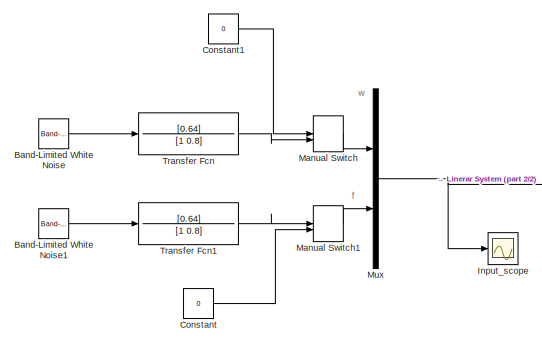
[diagram: root canvas - part 1/2, top left region]
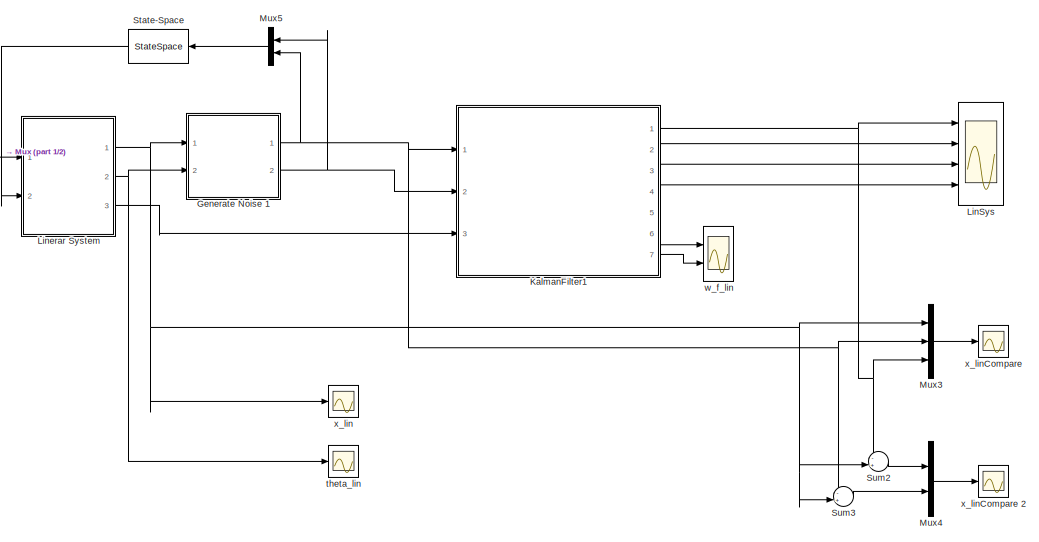
[diagram: root canvas - part 2/2, right side, full height]
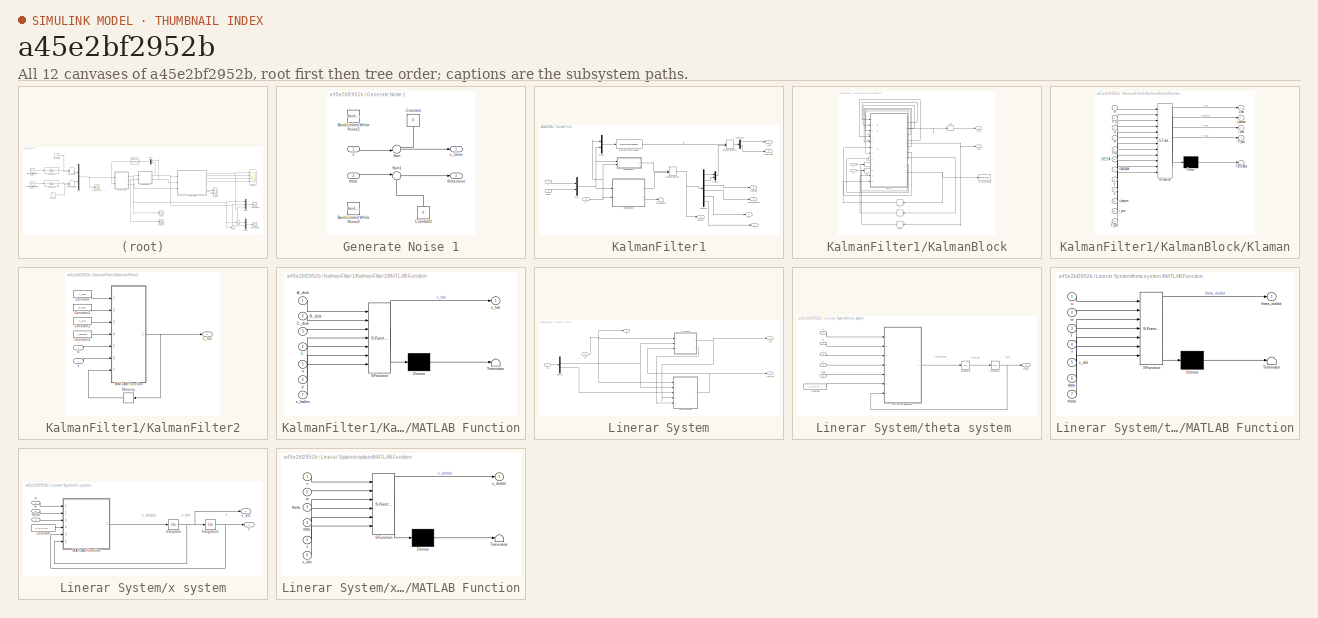
[diagram: thumbnail index - all 12 canvases of the model, root first then tree order]
MODEL slx_a45e2bf2952b
KIND model
CONFIG AbsTol = auto
CONFIG FixedStep = h
CONFIG MaxStep = auto
CONFIG MinStep = auto
CONFIG RelTol = 1e-3
CONFIG SampleTimeConstraint = Unconstrained
CONFIG Solver = ode3
CONFIG SolverMode = Auto
CONFIG SolverName = ode3
CONFIG StartTime = 0.0
CONFIG StopTime = T_max
BLOCK [Reference] Band-Limited White Noise  REF=simulink/Sources/Band-Limited
White Noise
  Cov = Q_kalman(1,1)
  Ports = [0, 1]
  SourceBlock = simulink/Sources/Band-Limited\nWhite Noise
  SourceType = Band-Limited White Noise.
  Ts = h
  VectorParams1D = on
  seed = [23343]
BLOCK [Reference] Band-Limited White Noise1  REF=simulink/Sources/Band-Limited
White Noise
  Cov = Q_kalman(2,2)
  Ports = [0, 1]
  SourceBlock = simulink/Sources/Band-Limited\nWhite Noise
  SourceType = Band-Limited White Noise.
  Ts = h
  VectorParams1D = on
  seed = [23344]
BLOCK [Constant] Constant
  Value = 0
BLOCK [Constant] Constant1
  Value = 0
BLOCK [SubSystem] Generate Noise 1
  Ports = [2, 2]
  RequestExecContextInheritance = off
BLOCK [Reference] Generate Noise 1/Band-Limited White Noise2  REF=simulink/Sources/Band-Limited
White Noise
  Cov = R_kalman(1,1)
  Ports = [0, 1]
  SourceBlock = simulink/Sources/Band-Limited\nWhite Noise
  SourceType = Band-Limited White Noise.
  Ts = h
  VectorParams1D = on
  seed = [23342]
BLOCK [Reference] Generate Noise 1/Band-Limited White Noise3  REF=simulink/Sources/Band-Limited
White Noise
  Cov = R_kalman(2,2)
  Ports = [0, 1]
  SourceBlock = simulink/Sources/Band-Limited\nWhite Noise
  SourceType = Band-Limited White Noise.
  Ts = h
  VectorParams1D = on
  seed = [23341]
BLOCK [Constant] Generate Noise 1/Constant
  Value = 0
BLOCK [Constant] Generate Noise 1/Constant1
  Value = 0
BLOCK [Sum] Generate Noise 1/Sum
  IconShape = round
  InputSameDT = off
  Inputs = ++|
  OutDataTypeStr = Inherit: Inherit via internal rule
  Ports = [2, 1]
  SaturateOnIntegerOverflow = off
BLOCK [Sum] Generate Noise 1/Sum1
  IconShape = round
  InputSameDT = off
  Inputs = |++
  OutDataTypeStr = Inherit: Inherit via internal rule
  Ports = [2, 1]
  SaturateOnIntegerOverflow = off
BLOCK [Inport] Generate Noise 1/theta
  IconDisplay = Port number
  Port = 2
BLOCK [Outport] Generate Noise 1/theta-noise
  IconDisplay = Port number
  Port = 2
BLOCK [Inport] Generate Noise 1/x
  IconDisplay = Port number
BLOCK [Outport] Generate Noise 1/x_noise
  IconDisplay = Port number
BLOCK [Scope] Input_scope
  Floating = off
  LimitDataPoints = off
  NumInputPorts = 1
  Ports = [1]
  SaveName = ScopeData4
  ShowLegends = off
  YMax = 3
  YMin = -4
BLOCK [SubSystem] KalmanFilter1
  Ports = [3, 7]
  RequestExecContextInheritance = off
BLOCK [Demux] KalmanFilter1/Demux
  DisplayOption = bar
  Outputs = 6
  Ports = [1, 6]
BLOCK [Demux] KalmanFilter1/Demux1
  DisplayOption = bar
  Outputs = 2
  Ports = [1, 2]
BLOCK [DiscreteStateSpace] KalmanFilter1/Discrete State-Space
  A = A_ss
  B = B_ss
  C = C_ss
  D = D_ss
BLOCK [SubSystem] KalmanFilter1/KalmanBlock
  Ports = [2, 2]
  RequestExecContextInheritance = off
BLOCK [Constant] KalmanFilter1/KalmanBlock/A2
  Value = H
BLOCK [Constant] KalmanFilter1/KalmanBlock/A4
  Value = phi
BLOCK [Constant] KalmanFilter1/KalmanBlock/A5
  Value = delta
BLOCK [Constant] KalmanFilter1/KalmanBlock/A6
  Value = gamma
BLOCK [Constant] KalmanFilter1/KalmanBlock/A7
  Value = P_0
BLOCK [Constant] KalmanFilter1/KalmanBlock/A8
  Value = Q_kalman
BLOCK [Constant] KalmanFilter1/KalmanBlock/A9
  Value = R_kalman
BLOCK [InitialCondition] KalmanFilter1/KalmanBlock/IC3
  Value = y_0
BLOCK [InitialCondition] KalmanFilter1/KalmanBlock/IC4
  Value = 0
BLOCK [InitialCondition] KalmanFilter1/KalmanBlock/IC5
  Value = X_0
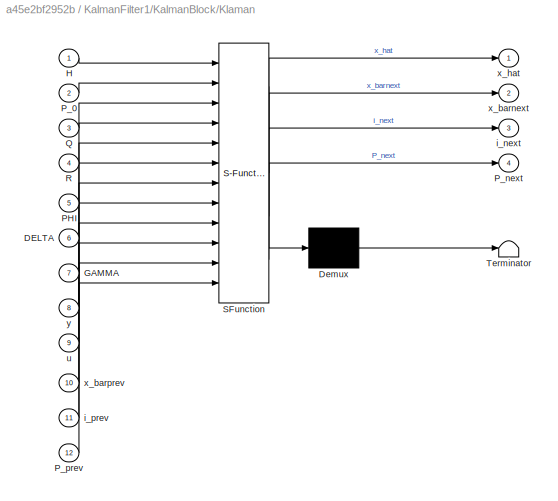
BLOCK [SubSystem] KalmanFilter1/KalmanBlock/Klaman
  ErrorFcn = Stateflow.Translate.translate
  PermitHierarchicalResolution = ExplicitOnly
  Ports = [12, 4]
  RequestExecContextInheritance = off
  SFBlockType = MATLAB Function
  TreatAsAtomicUnit = on
BLOCK [Demux] KalmanFilter1/KalmanBlock/Klaman/ Demux 
  Outputs = 1
  Ports = [1, 1]
BLOCK [S-Function] KalmanFilter1/KalmanBlock/Klaman/ SFunction 
  EnableBusSupport = on
  FunctionName = sf_sfun
  PortCounts = [12 5]
  Ports = [12, 5]
  Tag = Stateflow S-Function Model_kalmanTest3 5
BLOCK [Terminator] KalmanFilter1/KalmanBlock/Klaman/ Terminator 
BLOCK [Inport] KalmanFilter1/KalmanBlock/Klaman/DELTA
  IconDisplay = Port number
  Port = 6
BLOCK [Inport] KalmanFilter1/KalmanBlock/Klaman/GAMMA
  IconDisplay = Port number
  Port = 7
BLOCK [Inport] KalmanFilter1/KalmanBlock/Klaman/H
  IconDisplay = Port number
BLOCK [Inport] KalmanFilter1/KalmanBlock/Klaman/PHI
  IconDisplay = Port number
  Port = 5
BLOCK [Inport] KalmanFilter1/KalmanBlock/Klaman/P_0
  IconDisplay = Port number
  Port = 2
BLOCK [Outport] KalmanFilter1/KalmanBlock/Klaman/P_next
  IconDisplay = Port number
  Port = 4
BLOCK [Inport] KalmanFilter1/KalmanBlock/Klaman/P_prev
  IconDisplay = Port number
  Port = 12
BLOCK [Inport] KalmanFilter1/KalmanBlock/Klaman/Q
  IconDisplay = Port number
  Port = 3
BLOCK [Inport] KalmanFilter1/KalmanBlock/Klaman/R
  IconDisplay = Port number
  Port = 4
BLOCK [Outport] KalmanFilter1/KalmanBlock/Klaman/i_next
  IconDisplay = Port number
  Port = 3
BLOCK [Inport] KalmanFilter1/KalmanBlock/Klaman/i_prev
  IconDisplay = Port number
  Port = 11
BLOCK [Inport] KalmanFilter1/KalmanBlock/Klaman/u
  IconDisplay = Port number
  Port = 9
BLOCK [Outport] KalmanFilter1/KalmanBlock/Klaman/x_barnext
  IconDisplay = Port number
  Port = 2
BLOCK [Inport] KalmanFilter1/KalmanBlock/Klaman/x_barprev
  IconDisplay = Port number
  Port = 10
BLOCK [Outport] KalmanFilter1/KalmanBlock/Klaman/x_hat
  IconDisplay = Port number
BLOCK [Inport] KalmanFilter1/KalmanBlock/Klaman/y
  IconDisplay = Port number
  Port = 8
BLOCK [Memory] KalmanFilter1/KalmanBlock/P
  X0 = P_0
BLOCK [ToWorkspace] KalmanFilter1/KalmanBlock/To Workspace
  FixptAsFi = on
  MaxDataPoints = inf
  Ports = [1]
  SampleTime = -1
  Save2DSignal = 3-D array (concatenate along third dimension)
  VariableName = P_simulation
BLOCK [Memory] KalmanFilter1/KalmanBlock/i 
BLOCK [Inport] KalmanFilter1/KalmanBlock/u 
  IconDisplay = Port number
  Port = 2
BLOCK [Outport] KalmanFilter1/KalmanBlock/x_bar
  IconDisplay = Port number
  Port = 2
BLOCK [Memory] KalmanFilter1/KalmanBlock/x_bar'
  X0 = X_0
BLOCK [Outport] KalmanFilter1/KalmanBlock/x_hat
  IconDisplay = Port number
BLOCK [Inport] KalmanFilter1/KalmanBlock/y 
  IconDisplay = Port number
BLOCK [SubSystem] KalmanFilter1/KalmanFilter2
  Ports = [2, 1]
  RequestExecContextInheritance = off
BLOCK [Constant] KalmanFilter1/KalmanFilter2/Constant
  Value = A_disk
BLOCK [Constant] KalmanFilter1/KalmanFilter2/Constant1
  Value = B_disk
BLOCK [Constant] KalmanFilter1/KalmanFilter2/Constant2
  Value = C_disk
BLOCK [Constant] KalmanFilter1/KalmanFilter2/Constant3
  Value = L_kalman
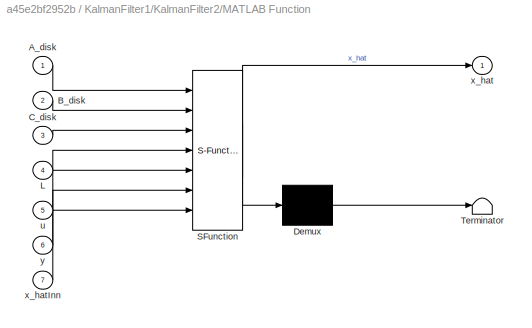
BLOCK [SubSystem] KalmanFilter1/KalmanFilter2/MATLAB Function
  ErrorFcn = Stateflow.Translate.translate
  PermitHierarchicalResolution = ExplicitOnly
  Ports = [7, 1]
  RequestExecContextInheritance = off
  SFBlockType = MATLAB Function
  TreatAsAtomicUnit = on
BLOCK [Demux] KalmanFilter1/KalmanFilter2/MATLAB Function/ Demux 
  Outputs = 1
  Ports = [1, 1]
BLOCK [S-Function] KalmanFilter1/KalmanFilter2/MATLAB Function/ SFunction 
  EnableBusSupport = on
  FunctionName = sf_sfun
  PortCounts = [7 2]
  Ports = [7, 2]
  Tag = Stateflow S-Function Model_kalmanTest3 7
BLOCK [Terminator] KalmanFilter1/KalmanFilter2/MATLAB Function/ Terminator 
BLOCK [Inport] KalmanFilter1/KalmanFilter2/MATLAB Function/A_disk
  IconDisplay = Port number
BLOCK [Inport] KalmanFilter1/KalmanFilter2/MATLAB Function/B_disk
  IconDisplay = Port number
  Port = 2
BLOCK [Inport] KalmanFilter1/KalmanFilter2/MATLAB Function/C_disk
  IconDisplay = Port number
  Port = 3
BLOCK [Inport] KalmanFilter1/KalmanFilter2/MATLAB Function/L
  IconDisplay = Port number
  Port = 4
BLOCK [Inport] KalmanFilter1/KalmanFilter2/MATLAB Function/u
  IconDisplay = Port number
  Port = 5
BLOCK [Outport] KalmanFilter1/KalmanFilter2/MATLAB Function/x_hat
  IconDisplay = Port number
BLOCK [Inport] KalmanFilter1/KalmanFilter2/MATLAB Function/x_hatInn
  IconDisplay = Port number
  Port = 7
BLOCK [Inport] KalmanFilter1/KalmanFilter2/MATLAB Function/y
  IconDisplay = Port number
  Port = 6
BLOCK [Memory] KalmanFilter1/KalmanFilter2/Memory
  X0 = X_0
BLOCK [Inport] KalmanFilter1/KalmanFilter2/u
  IconDisplay = Port number
  Port = 2
BLOCK [Outport] KalmanFilter1/KalmanFilter2/x_hat
  IconDisplay = Port number
BLOCK [Inport] KalmanFilter1/KalmanFilter2/y
  IconDisplay = Port number
BLOCK [ManualSwitch] KalmanFilter1/Manual Switch
BLOCK [ManualSwitch] KalmanFilter1/Manual Switch1
  CurrentSetting = 0
BLOCK [Mux] KalmanFilter1/Mux
  DisplayOption = bar
  Inputs = 2
  Ports = [2, 1]
BLOCK [Mux] KalmanFilter1/Mux1
  DisplayOption = bar
  Inputs = 2
  Ports = [2, 1]
BLOCK [Mux] KalmanFilter1/Mux2
  DisplayOption = bar
  Inputs = 2
  Ports = [2, 1]
BLOCK [Terminator] KalmanFilter1/Terminator
BLOCK [Outport] KalmanFilter1/f
  IconDisplay = Port number
  Port = 7
BLOCK [Inport] KalmanFilter1/theta
  IconDisplay = Port number
  Port = 2
BLOCK [Outport] KalmanFilter1/theta_dothat
  IconDisplay = Port number
  Port = 4
BLOCK [Outport] KalmanFilter1/theta_hat
  IconDisplay = Port number
  Port = 2
BLOCK [Inport] KalmanFilter1/u 
  IconDisplay = Port number
  Port = 3
BLOCK [Outport] KalmanFilter1/vector
  IconDisplay = Port number
  Port = 5
BLOCK [Outport] KalmanFilter1/w
  IconDisplay = Port number
  Port = 6
BLOCK [Inport] KalmanFilter1/x
  IconDisplay = Port number
BLOCK [Outport] KalmanFilter1/x_dothat
  IconDisplay = Port number
  Port = 3
BLOCK [Outport] KalmanFilter1/x_hat
  IconDisplay = Port number
BLOCK [Scope] LinSys
  Floating = off
  LimitDataPoints = off
  NumInputPorts = 4
  Ports = [4]
  SaveName = ScopeData9
  ShowLegends = off
  YMax = 0.4~0.2~3~1
  YMin = -0.2~-0.2~-2~-2
BLOCK [SubSystem] Linerar System
  Ports = [2, 3]
  RequestExecContextInheritance = off
BLOCK [Demux] Linerar System/Demux
  DisplayOption = bar
  Outputs = 2
  Ports = [1, 2]
BLOCK [Inport] Linerar System/In1
  IconDisplay = Port number
BLOCK [Inport] Linerar System/In2
  IconDisplay = Port number
  Port = 2
BLOCK [SubSystem] Linerar System/theta system 
  Ports = [5, 1]
  RequestExecContextInheritance = off
BLOCK [Constant] Linerar System/theta system /Constant
  SampleTime = 0.01
  Value = [L M m b k g]
  VectorParams1D = off
BLOCK [Integrator] Linerar System/theta system /Integrator
  InitialCondition = theta_dot0
  Ports = [1, 1]
BLOCK [Integrator] Linerar System/theta system /Integrator1
  InitialCondition = theta_0
  Ports = [1, 1]
BLOCK [SubSystem] Linerar System/theta system /MATLAB Function
  ErrorFcn = Stateflow.Translate.translate
  PermitHierarchicalResolution = ExplicitOnly
  Ports = [7, 1]
  RequestExecContextInheritance = off
  SFBlockType = MATLAB Function
  TreatAsAtomicUnit = on
BLOCK [Demux] Linerar System/theta system /MATLAB Function/ Demux 
  Outputs = 1
  Ports = [1, 1]
BLOCK [S-Function] Linerar System/theta system /MATLAB Function/ SFunction 
  EnableBusSupport = on
  FunctionName = sf_sfun
  PortCounts = [7 2]
  Ports = [7, 2]
  Tag = Stateflow S-Function Model_kalmanTest3 3
BLOCK [Terminator] Linerar System/theta system /MATLAB Function/ Terminator 
BLOCK [Inport] Linerar System/theta system /MATLAB Function/data
  IconDisplay = Port number
  Port = 6
BLOCK [Inport] Linerar System/theta system /MATLAB Function/f
  IconDisplay = Port number
  Port = 3
BLOCK [Inport] Linerar System/theta system /MATLAB Function/theta
  IconDisplay = Port number
  Port = 7
BLOCK [Outport] Linerar System/theta system /MATLAB Function/theta_dotdot
  IconDisplay = Port number
BLOCK [Inport] Linerar System/theta system /MATLAB Function/u
  IconDisplay = Port number
BLOCK [Inport] Linerar System/theta system /MATLAB Function/w
  IconDisplay = Port number
  Port = 2
BLOCK [Inport] Linerar System/theta system /MATLAB Function/x
  IconDisplay = Port number
  Port = 4
BLOCK [Inport] Linerar System/theta system /MATLAB Function/x_dot
  IconDisplay = Port number
  Port = 5
BLOCK [Inport] Linerar System/theta system /f
  IconDisplay = Port number
  Port = 3
BLOCK [Outport] Linerar System/theta system /theta
  IconDisplay = Port number
BLOCK [Inport] Linerar System/theta system /u 
  IconDisplay = Port number
BLOCK [Inport] Linerar System/theta system /w
  IconDisplay = Port number
  Port = 2
BLOCK [Inport] Linerar System/theta system /x
  IconDisplay = Port number
  Port = 4
BLOCK [Inport] Linerar System/theta system /x_dot
  IconDisplay = Port number
  Port = 5
BLOCK [Outport] Linerar System/theta_lin
  IconDisplay = Port number
  Port = 2
BLOCK [Outport] Linerar System/u
  IconDisplay = Port number
  Port = 3
BLOCK [SubSystem] Linerar System/x system
  Ports = [3, 2]
  RequestExecContextInheritance = off
BLOCK [Constant] Linerar System/x system/Constant
  SampleTime = 0.01
  Value = [L M m b k g]
  VectorParams1D = off
BLOCK [Integrator] Linerar System/x system/Integrator
  InitialCondition = x_dot0
  Ports = [1, 1]
BLOCK [Integrator] Linerar System/x system/Integrator1
  InitialCondition = x_0
  Ports = [1, 1]
BLOCK [SubSystem] Linerar System/x system/MATLAB Function
  ErrorFcn = Stateflow.Translate.translate
  PermitHierarchicalResolution = ExplicitOnly
  Ports = [6, 1]
  RequestExecContextInheritance = off
  SFBlockType = MATLAB Function
  TreatAsAtomicUnit = on
BLOCK [Demux] Linerar System/x system/MATLAB Function/ Demux 
  Outputs = 1
  Ports = [1, 1]
BLOCK [S-Function] Linerar System/x system/MATLAB Function/ SFunction 
  EnableBusSupport = on
  FunctionName = sf_sfun
  PortCounts = [6 2]
  Ports = [6, 2]
  Tag = Stateflow S-Function Model_kalmanTest3 1
BLOCK [Terminator] Linerar System/x system/MATLAB Function/ Terminator 
BLOCK [Inport] Linerar System/x system/MATLAB Function/data
  IconDisplay = Port number
  Port = 4
BLOCK [Inport] Linerar System/x system/MATLAB Function/theta
  IconDisplay = Port number
  Port = 3
BLOCK [Inport] Linerar System/x system/MATLAB Function/u
  IconDisplay = Port number
BLOCK [Inport] Linerar System/x system/MATLAB Function/w
  IconDisplay = Port number
  Port = 2
BLOCK [Inport] Linerar System/x system/MATLAB Function/x
  IconDisplay = Port number
  Port = 5
BLOCK [Inport] Linerar System/x system/MATLAB Function/x_dot
  IconDisplay = Port number
  Port = 6
BLOCK [Outport] Linerar System/x system/MATLAB Function/x_dotdot
  IconDisplay = Port number
BLOCK [Inport] Linerar System/x system/theta
  IconDisplay = Port number
  Port = 3
BLOCK [Inport] Linerar System/x system/u 
  IconDisplay = Port number
BLOCK [Inport] Linerar System/x system/w
  IconDisplay = Port number
  Port = 2
BLOCK [Outport] Linerar System/x system/x
  IconDisplay = Port number
BLOCK [Outport] Linerar System/x system/x_dot
  IconDisplay = Port number
  Port = 2
BLOCK [Outport] Linerar System/x_lin
  IconDisplay = Port number
BLOCK [ManualSwitch] Manual Switch
  CurrentSetting = 0
BLOCK [ManualSwitch] Manual Switch1
  CurrentSetting = 0
BLOCK [Mux] Mux
  DisplayOption = bar
  Inputs = 2
  Ports = [2, 1]
BLOCK [Mux] Mux3
  DisplayOption = bar
  Inputs = 3
  Ports = [3, 1]
BLOCK [Mux] Mux4
  DisplayOption = bar
  Inputs = 2
  Ports = [2, 1]
BLOCK [Mux] Mux5
  DisplayOption = bar
  Inputs = 2
  Ports = [2, 1]
BLOCK [StateSpace] State-Space
  A = A_kA2
  B = B_kA2
  C = C_kA2
  D = D_kA2
  Ports = [1, 1]
  X0 = 0
BLOCK [Sum] Sum2
  IconShape = round
  InputSameDT = off
  Inputs = -+|
  OutDataTypeStr = Inherit: Inherit via internal rule
  Ports = [2, 1]
  SaturateOnIntegerOverflow = off
BLOCK [Sum] Sum3
  IconShape = round
  InputSameDT = off
  Inputs = -+|
  OutDataTypeStr = Inherit: Inherit via internal rule
  Ports = [2, 1]
  SaturateOnIntegerOverflow = off
BLOCK [TransferFcn] Transfer Fcn
  Denominator = [1 0.8]
  Numerator = [0.64]
BLOCK [TransferFcn] Transfer Fcn1
  Denominator = [1 0.8]
  Numerator = [0.64]
BLOCK [Scope] theta_lin
  DataFormat = StructureWithTime
  Floating = off
  LimitDataPoints = off
  NumInputPorts = 1
  Ports = [1]
  SaveName = ScopeData2
  ShowLegends = off
  YMax = 25353039785693015000000000000000000000000000000000000000000000000000000000000000000000000000000000000000000000000000000000000000000000000000000000000000000000000000000000000000000000000000000000000000000000000000000000000000000000000000000000000000000000000000000000000000000000000000000000000000000000000.00000
  YMin = -228177358071237180000000000000000000000000000000000000000000000000000000000000000000000000000000000000000000000000000000000000000000000000000000000000000000000000000000000000000000000000000000000000000000000000000000000000000000000000000000000000000000000000000000000000000000000000000000000000000000000000.00000
BLOCK [Scope] w_f_lin
  DataFormat = StructureWithTime
  Floating = off
  LegendLocations = 0.87455     0.90781    0.097388    0.028273\n0.87455     0.44321    0.097388    0.028273
  LimitDataPoints = off
  NumInputPorts = 2
  Ports = [2]
  SaveName = ScopeData10
  ShowLegends = on
  YMax = 0.3~0.04
  YMin = -0.1~-0.04
BLOCK [Scope] x_lin
  DataFormat = StructureWithTime
  Floating = off
  LimitDataPoints = off
  NumInputPorts = 1
  Ports = [1]
  SaveName = ScopeData1
  ShowLegends = off
  YMax = 0.5
  YMin = -0.5
  ZoomMode = yonly
BLOCK [Scope] x_linCompare
  DataFormat = StructureWithTime
  Floating = off
  LegendLocations = 1.7273     0.87667     0.22231     0.07201
  LimitDataPoints = off
  NumInputPorts = 1
  Ports = [1]
  SaveName = ScopeData6
  ShowLegends = on
  TimeRange = 300
  YMax = 0.4
  YMin = -0.2
  ZoomMode = yonly
BLOCK [Scope] x_linCompare 2
  DataFormat = StructureWithTime
  Floating = off
  LegendLocations = 0.90991     0.88642    0.062032    0.049664
  LimitDataPoints = off
  NumInputPorts = 1
  Ports = [1]
  SaveName = ScopeData7
  ShowLegends = on
  YMax = 0.4
  YMin = -0.2
  ZoomMode = yonly
ANNOTATION (root): f
ANNOTATION (root): w
ANNOTATION Linerar System/theta system : theta
ANNOTATION Linerar System/theta system : theta_dot
ANNOTATION Linerar System/theta system : theta_dotdot
ANNOTATION Linerar System/x system: x
ANNOTATION Linerar System/x system: x_dot
ANNOTATION Linerar System/x system: x_dotdot
LINE Band-Limited White Noise1:1 -> Transfer Fcn1:1
LINE Band-Limited White Noise:1 -> Transfer Fcn:1
LINE Constant1:1 -> Manual Switch:1
LINE Constant:1 -> Manual Switch1:2
LINE Generate Noise 1/Constant1:1 -> Generate Noise 1/Sum1:2
LINE Generate Noise 1/Constant:1 -> Generate Noise 1/Sum:1
LINE Generate Noise 1/Sum1:1 -> Generate Noise 1/theta-noise:1
LINE Generate Noise 1/Sum:1 -> Generate Noise 1/x_noise:1
LINE Generate Noise 1/theta:1 -> Generate Noise 1/Sum1:1
LINE Generate Noise 1/x:1 -> Generate Noise 1/Sum:2
NET Generate Noise 1:1 -> KalmanFilter1:1, Mux3:2, Mux5:2, Sum3:1
NET Generate Noise 1:2 -> KalmanFilter1:2, Mux5:1
LINE KalmanFilter1/Demux1:1 -> KalmanFilter1/x_hat:1
LINE KalmanFilter1/Demux1:2 -> KalmanFilter1/theta_hat:1
LINE KalmanFilter1/Demux:1 -> KalmanFilter1/Mux2:1
LINE KalmanFilter1/Demux:2 -> KalmanFilter1/Mux2:2
LINE KalmanFilter1/Demux:3 -> KalmanFilter1/x_dothat:1
LINE KalmanFilter1/Demux:4 -> KalmanFilter1/theta_dothat:1
LINE KalmanFilter1/Demux:5 -> KalmanFilter1/w:1
LINE KalmanFilter1/Demux:6 -> KalmanFilter1/f:1
LINE KalmanFilter1/Discrete State-Space:1 -> KalmanFilter1/Manual Switch1:1
LINE KalmanFilter1/KalmanBlock/A2:1 -> KalmanFilter1/KalmanBlock/Klaman:1
LINE KalmanFilter1/KalmanBlock/A4:1 -> KalmanFilter1/KalmanBlock/Klaman:5
LINE KalmanFilter1/KalmanBlock/A5:1 -> KalmanFilter1/KalmanBlock/Klaman:6
LINE KalmanFilter1/KalmanBlock/A6:1 -> KalmanFilter1/KalmanBlock/Klaman:7
LINE KalmanFilter1/KalmanBlock/A7:1 -> KalmanFilter1/KalmanBlock/Klaman:2
LINE KalmanFilter1/KalmanBlock/A8:1 -> KalmanFilter1/KalmanBlock/Klaman:3
LINE KalmanFilter1/KalmanBlock/A9:1 -> KalmanFilter1/KalmanBlock/Klaman:4
LINE KalmanFilter1/KalmanBlock/IC3:1 -> KalmanFilter1/KalmanBlock/Klaman:8
LINE KalmanFilter1/KalmanBlock/IC4:1 -> KalmanFilter1/KalmanBlock/Klaman:9
LINE KalmanFilter1/KalmanBlock/IC5:1 -> KalmanFilter1/KalmanBlock/x_hat:1
LINE KalmanFilter1/KalmanBlock/Klaman:1 -> KalmanFilter1/KalmanBlock/IC5:1
NET KalmanFilter1/KalmanBlock/Klaman:2 -> KalmanFilter1/KalmanBlock/x_bar':1, KalmanFilter1/KalmanBlock/x_bar:1
LINE KalmanFilter1/KalmanBlock/Klaman:3 -> KalmanFilter1/KalmanBlock/i :1
NET KalmanFilter1/KalmanBlock/Klaman:4 -> KalmanFilter1/KalmanBlock/P:1, KalmanFilter1/KalmanBlock/To Workspace:1
LINE KalmanFilter1/KalmanBlock/P:1 -> KalmanFilter1/KalmanBlock/Klaman:12
LINE KalmanFilter1/KalmanBlock/i :1 -> KalmanFilter1/KalmanBlock/Klaman:11
LINE KalmanFilter1/KalmanBlock/u :1 -> KalmanFilter1/KalmanBlock/IC4:1
LINE KalmanFilter1/KalmanBlock/x_bar':1 -> KalmanFilter1/KalmanBlock/Klaman:10
LINE KalmanFilter1/KalmanBlock/y :1 -> KalmanFilter1/KalmanBlock/IC3:1
LINE KalmanFilter1/KalmanBlock:1 -> KalmanFilter1/Manual Switch:2
LINE KalmanFilter1/KalmanBlock:2 -> KalmanFilter1/Terminator:1
LINE KalmanFilter1/KalmanFilter2/Constant1:1 -> KalmanFilter1/KalmanFilter2/MATLAB Function:2
LINE KalmanFilter1/KalmanFilter2/Constant2:1 -> KalmanFilter1/KalmanFilter2/MATLAB Function:3
LINE KalmanFilter1/KalmanFilter2/Constant3:1 -> KalmanFilter1/KalmanFilter2/MATLAB Function:4
LINE KalmanFilter1/KalmanFilter2/Constant:1 -> KalmanFilter1/KalmanFilter2/MATLAB Function:1
NET KalmanFilter1/KalmanFilter2/MATLAB Function:1 -> KalmanFilter1/KalmanFilter2/Memory:1, KalmanFilter1/KalmanFilter2/x_hat:1
LINE KalmanFilter1/KalmanFilter2/Memory:1 -> KalmanFilter1/KalmanFilter2/MATLAB Function:7
LINE KalmanFilter1/KalmanFilter2/u:1 -> KalmanFilter1/KalmanFilter2/MATLAB Function:5
LINE KalmanFilter1/KalmanFilter2/y:1 -> KalmanFilter1/KalmanFilter2/MATLAB Function:6
LINE KalmanFilter1/KalmanFilter2:1 -> KalmanFilter1/Manual Switch:1
LINE KalmanFilter1/Manual Switch1:1 -> KalmanFilter1/Demux1:1
NET KalmanFilter1/Manual Switch:1 -> KalmanFilter1/Demux:1, KalmanFilter1/vector:1
LINE KalmanFilter1/Mux1:1 -> KalmanFilter1/Discrete State-Space:1
LINE KalmanFilter1/Mux2:1 -> KalmanFilter1/Manual Switch1:2
NET KalmanFilter1/Mux:1 -> KalmanFilter1/KalmanBlock:1, KalmanFilter1/KalmanFilter2:1, KalmanFilter1/Mux1:2
LINE KalmanFilter1/theta:1 -> KalmanFilter1/Mux:2
NET KalmanFilter1/u :1 -> KalmanFilter1/KalmanBlock:2, KalmanFilter1/KalmanFilter2:2, KalmanFilter1/Mux1:1
LINE KalmanFilter1/x:1 -> KalmanFilter1/Mux:1
NET KalmanFilter1:1 -> LinSys:1, Mux3:3, Sum2:1
LINE KalmanFilter1:2 -> LinSys:2
LINE KalmanFilter1:3 -> LinSys:3
LINE KalmanFilter1:4 -> LinSys:4
LINE KalmanFilter1:6 -> w_f_lin:1
LINE KalmanFilter1:7 -> w_f_lin:2
NET Linerar System/Demux:1 -> Linerar System/theta system :2, Linerar System/x system:2
LINE Linerar System/Demux:2 -> Linerar System/theta system :3
LINE Linerar System/In1:1 -> Linerar System/Demux:1
NET Linerar System/In2:1 -> Linerar System/theta system :1, Linerar System/u:1, Linerar System/x system:1
LINE Linerar System/theta system /Constant:1 -> Linerar System/theta system /MATLAB Function:6
NET Linerar System/theta system /Integrator1:1 -> Linerar System/theta system /MATLAB Function:7, Linerar System/theta system /theta:1
LINE Linerar System/theta system /Integrator:1 -> Linerar System/theta system /Integrator1:1
LINE Linerar System/theta system /MATLAB Function:1 -> Linerar System/theta system /Integrator:1
LINE Linerar System/theta system /f:1 -> Linerar System/theta system /MATLAB Function:3
LINE Linerar System/theta system /u :1 -> Linerar System/theta system /MATLAB Function:1
LINE Linerar System/theta system /w:1 -> Linerar System/theta system /MATLAB Function:2
LINE Linerar System/theta system /x:1 -> Linerar System/theta system /MATLAB Function:4
LINE Linerar System/theta system /x_dot:1 -> Linerar System/theta system /MATLAB Function:5
NET Linerar System/theta system :1 -> Linerar System/theta_lin:1, Linerar System/x system:3
LINE Linerar System/x system/Constant:1 -> Linerar System/x system/MATLAB Function:4
NET Linerar System/x system/Integrator1:1 -> Linerar System/x system/MATLAB Function:5, Linerar System/x system/x:1
NET Linerar System/x system/Integrator:1 -> Linerar System/x system/Integrator1:1, Linerar System/x system/MATLAB Function:6, Linerar System/x system/x_dot:1
LINE Linerar System/x system/MATLAB Function:1 -> Linerar System/x system/Integrator:1
LINE Linerar System/x system/theta:1 -> Linerar System/x system/MATLAB Function:3
LINE Linerar System/x system/u :1 -> Linerar System/x system/MATLAB Function:1
LINE Linerar System/x system/w:1 -> Linerar System/x system/MATLAB Function:2
NET Linerar System/x system:1 -> Linerar System/theta system :4, Linerar System/x_lin:1
LINE Linerar System/x system:2 -> Linerar System/theta system :5
NET Linerar System:1 -> Generate Noise 1:1, Mux3:1, Sum2:2, Sum3:2, x_lin:1
NET Linerar System:2 -> Generate Noise 1:2, theta_lin:1
LINE Linerar System:3 -> KalmanFilter1:3
LINE Manual Switch1:1 -> Mux:2
LINE Manual Switch:1 -> Mux:1
LINE Mux3:1 -> x_linCompare:1
LINE Mux4:1 -> x_linCompare 2:1
LINE Mux5:1 -> State-Space:1
NET Mux:1 -> Input_scope:1, Linerar System:1
LINE State-Space:1 -> Linerar System:2
LINE Sum2:1 -> Mux4:1
LINE Sum3:1 -> Mux4:2
LINE Transfer Fcn1:1 -> Manual Switch1:1
LINE Transfer Fcn:1 -> Manual Switch:2
note: NET lines group one-source signal fan-out (src -> all destinations, sorted); 1:1 wires keep LINE
CHART Linerar System/x system/MATLAB Function states=1 transitions=1
  STATE_LABEL 'eML_blk_kernel()'
  STATE_LABEL 'SCRIPT:\nfunction x_dotdot  = fcn(u, w, theta, data, x, x_dot)\nL = data(1);\nM = data(2);\nm = data(3);\nb = data(4);\nk = data(5);\ng = data(6);\n\n% theta = theta * 180 / pi;\n\nx_dotdot=(u - w - m * g * theta - b * x_dot - k * x) / M;\n\n\nend'
CHART Linerar System/theta system
/MATLAB Function states=1 transitions=1
  STATE_LABEL 'eML_blk_kernel()'
  STATE_LABEL 'SCRIPT:\nfunction theta_dotdot  = fcn(u, w, f, x, x_dot, data, theta)\nL = data(1);\nM = data(2);\nm = data(3);\nb = data(4);\nk = data(5);\ng = data(6);\n\n% theta = theta * 180 / pi;\n\ntheta_dotdot=(-u + w + (m + M) * g * theta - (M / m) * f + b * x_dot + k * x)/(L * M);\n\nend'
CHART KalmanFilter1/KalmanBlock/Klaman states=1 transitions=1
  STATE_LABEL 'eML_blk_kernel()'
  STATE_LABEL "SCRIPT:\nfunction [x_hat, x_barnext, i_next, P_next] = KalmanFilter(H, P_0, Q, R, PHI, DELTA, GAMMA, y, u, x_barprev, i_prev, P_prev)\nI = eye(6);\nif i_prev == 0\n    x_barnext = x_barprev;\n    x_hat = x_barprev;\n    P_next = P_0;\nelse\n    K = P_prev * (H') * inv(H * P_prev * (H') + R);\n    x_hat = x_barprev + K * (y - H * x_barprev);\n    P_hat = (I - K * H) * P_prev * (I - K * H)' + K * R * K';\n    ...<+125ch>"
CHART KalmanFilter1/KalmanFilter2/MATLAB Function states=1 transitions=1
  STATE_LABEL 'eML_blk_kernel()'
  STATE_LABEL 'SCRIPT:\nfunction x_hat = fcn(A_disk,B_disk,C_disk,L,u,y,x_hatInn)\n\nx_hat=A_disk*x_hatInn+B_disk(:,1)*u+L*(y-C_disk*x_hatInn);\n\nend'
